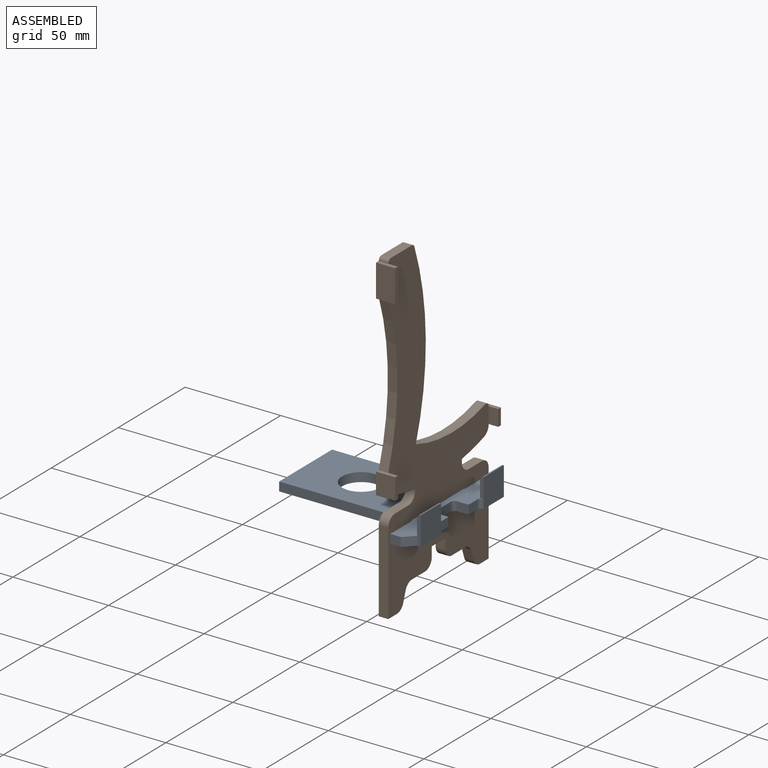
[diagram: assembled view]
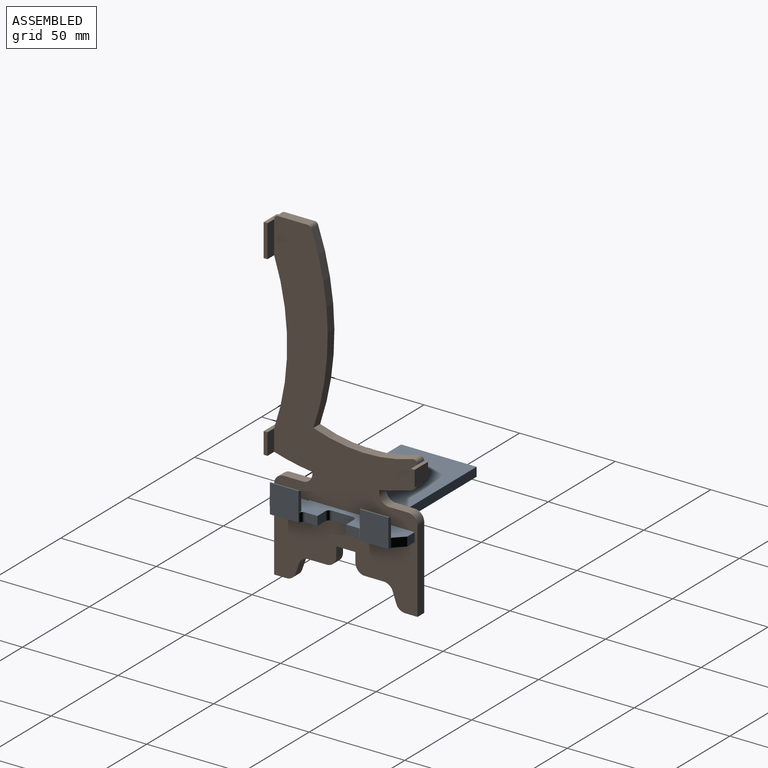
[diagram: assembled view, second angle]
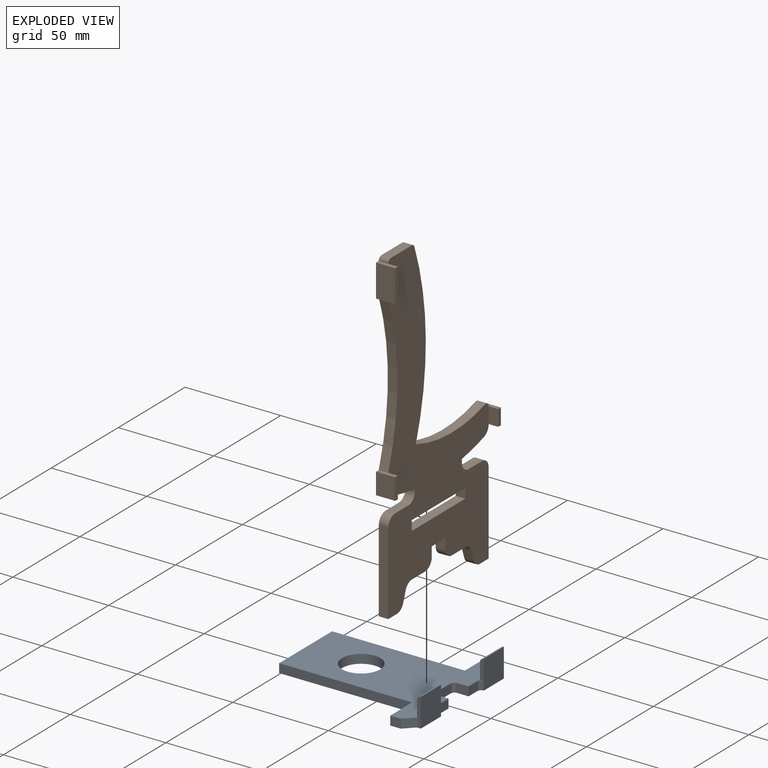
[diagram: exploded view]
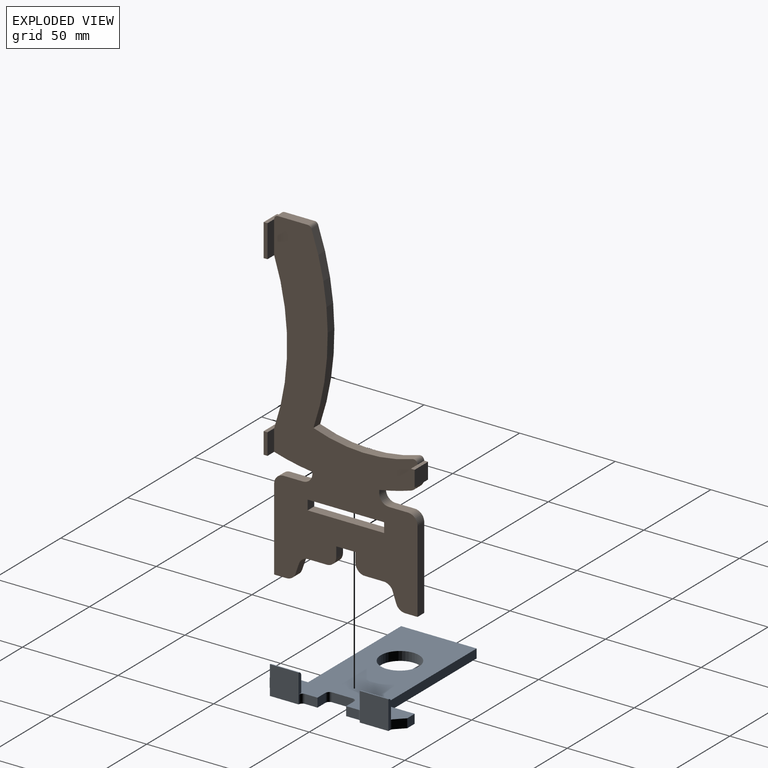
[diagram: exploded view, second angle]
ASSEMBLY  parts=2 mates=2
PART A: 33 faces, bbox 72x82x15 mm
  f0: plane 6.5x4.7mm, normal (0,-1,0), area 30.6mm2, adj f4,f5,f14,f25
  f1: plane 5.5x4.7mm, normal (1,0,0), area 25.8mm2, adj f4,f5,f8,f11
  f2: plane 5.5x4.7mm, normal (-1,0,0), area 25.8mm2, adj f4,f5,f9,f12
  f3: plane 39.5x4.7mm, normal (0,1,0), area 185.7mm2, adj f4,f5,f7,f10
  f4: plane 82x72mm, normal (0,0,-1), area 3105.7mm2, adj f0,f1,f2,f3,f6,f7,f8,f9
  f5: plane 82x72mm, normal (0,0,1), area 3045.7mm2, adj f0,f1,f2,f3,f6,f7,f8,f9
  f6: plane 6.5x4.7mm, normal (0,-1,0), area 30.5mm2, adj f4,f5,f13,f24
  f7: plane 69.5x4.7mm, normal (1,0,0), area 326.6mm2, adj f3,f4,f5,f8
  f8: plane 16.25x4.7mm, normal (0,1,0), area 76.4mm2, adj f1,f4,f5,f7
  f9: plane 16.25x4.7mm, normal (0,1,0), area 76.4mm2, adj f2,f4,f5,f10
  f10: plane 69.5x4.7mm, normal (-1,0,0), area 326.6mm2, adj f3,f4,f5,f9
  f11: plane 4.7x4.41mm, normal (0.71,-0.71,0), area 29.3mm2, adj f1,f4,f5,f30
  f12: plane 4.7x4.41mm, normal (-0.71,-0.71,0), area 29.3mm2, adj f2,f4,f5,f31
  f13: plane 6x4.7mm, normal (-1,0,0), area 28.2mm2, adj f4,f5,f6,f28
  f14: plane 6x4.7mm, normal (1,0,0), area 28.2mm2, adj f0,f4,f5,f29
  f15: plane 11x4.7mm, normal (0,-1,0), area 51.7mm2, adj f4,f5,f28,f29
  f16: plane 15x8.3mm, normal (0,1,0), area 124.5mm2, adj f5,f17,f19,f27
  f17: plane 15x2mm, normal (-1,0,0), area 25.2mm2, adj f4,f5,f16,f18,f27,f31
  f18: plane 15x15mm, normal (0,-1,0), area 225mm2, adj f4,f17,f19,f25,f27
  f19: plane 10.3x2mm, normal (1,0,0), area 19.7mm2, adj f5,f16,f18,f27
  f20: plane 15x8.3mm, normal (0,1,0), area 124.5mm2, adj f5,f21,f22,f26
  f21: plane 15x2mm, normal (1,0,0), area 25.2mm2, adj f4,f5,f20,f23,f26,f30
  f22: plane 10.3x2mm, normal (-1,0,0), area 19.7mm2, adj f5,f20,f23,f26
  f23: plane 15x15mm, normal (0,-1,0), area 225mm2, adj f4,f21,f22,f24,f26
  f24: cylinder r=2mm len=4.7mm, axis (0,0,-1), area 14.8mm2, adj f4,f5,f6,f23
  f25: cylinder r=2mm len=4.7mm, axis (0,0,1), area 14.8mm2, adj f0,f4,f5,f18
  f26: cylinder r=2mm len=15mm, axis (1,0,0), area 47.1mm2, adj f20,f21,f22,f23
  f27: cylinder r=2mm len=15mm, axis (1,0,0), area 47.1mm2, adj f16,f17,f18,f19
  f28: cylinder r=2mm len=4.7mm, axis (0,0,-1), area 14.8mm2, adj f4,f5,f13,f15
  f29: cylinder r=2mm len=4.7mm, axis (0,0,1), area 14.8mm2, adj f4,f5,f14,f15
  f30: cylinder r=2mm len=4.7mm, axis (0,0,1), area 7.4mm2, adj f4,f5,f11,f21
  f31: cylinder r=2mm len=4.7mm, axis (0,0,-1), area 7.4mm2, adj f4,f5,f12,f17
  f32: cylinder r=10mm len=20mm, axis (0,0,1), area 295.3mm2, adj f4,f5
PART B: 56 faces, bbox 10x79x170 mm
  f0: plane 6.44x5mm, normal (0,0,-1), area 32.2mm2, adj f2,f3,f6,f37
  f1: plane 15.63x5mm, normal (0,0,1), area 78.1mm2, adj f2,f3,f39,f40
  f2: plane 170x75mm, normal (1,0,0), area 6204.3mm2, adj f0,f1,f4,f5,f6,f7,f8,f9
  f3: plane 170x79mm, normal (-1,0,0), area 6277.5mm2, adj f0,f1,f4,f5,f6,f7,f8,f9
  f4: plane 6.44x5mm, normal (0,0,-1), area 32.2mm2, adj f2,f3,f5,f32
  f5: plane 43x5mm, normal (0,1,0), area 215mm2, adj f2,f3,f4,f21
  f6: plane 43x5mm, normal (0,-1,0), area 215mm2, adj f0,f2,f3,f24
  f7: plane 5.1x5mm, normal (0,1,0), area 25.5mm2, adj f2,f3,f8,f10
  f8: plane 40x5mm, normal (0,0,1), area 200mm2, adj f2,f3,f7,f9
  f9: plane 5.1x5mm, normal (0,-1,0), area 25.5mm2, adj f2,f3,f8,f10
  f10: plane 40x5mm, normal (0,0,-1), area 200mm2, adj f2,f3,f7,f9
  f11: cylinder r=126.3mm len=81.83mm, axis (1,0,0), area 416.7mm2, adj f2,f3,f42,f47
  f12: plane 5x1.74mm, normal (0,1,0), area 8.7mm2, adj f2,f3,f14,f22
  f13: plane 10x5mm, normal (0,0,1), area 50mm2, adj f2,f3,f21,f22
  f14: cylinder r=120.45mm len=16.54mm, axis (1,0,0), area 85.3mm2, adj f2,f3,f12,f20
  f15: plane 10x5mm, normal (0,0,1), area 50mm2, adj f2,f3,f23,f24
  f16: plane 5x0.84mm, normal (0,-1,0), area 4.2mm2, adj f2,f3,f17,f23
  f17: cylinder r=120.45mm len=20mm, axis (1,0,0), area 102.3mm2, adj f2,f3,f16,f43
  f18: cylinder r=142.32mm len=93.88mm, axis (1,0,0), area 478.4mm2, adj f2,f3,f19,f39
  f19: cylinder r=79.64mm len=51.83mm, axis (1,0,0), area 264mm2, adj f2,f3,f18,f38
  f20: cylinder r=5mm len=5mm, axis (1,0,0), area 31.4mm2, adj f2,f3,f14,f54
  f21: cylinder r=5mm len=5mm, axis (1,0,0), area 39.3mm2, adj f2,f3,f5,f13
  f22: cylinder r=5mm len=5mm, axis (-1,0,0), area 39.3mm2, adj f2,f3,f12,f13
  f23: cylinder r=5mm len=5mm, axis (1,0,0), area 39.3mm2, adj f2,f3,f15,f16
  f24: cylinder r=5mm len=5mm, axis (-1,0,0), area 39.3mm2, adj f2,f3,f6,f15
  f25: plane 5.27x5mm, normal (0,-0.95,-0.33), area 27.9mm2, adj f2,f3,f32,f33
  f26: plane 9.79x5mm, normal (0,0,-1), area 48.9mm2, adj f2,f3,f33,f34
  f27: plane 5x5mm, normal (0,-1,0), area 25mm2, adj f2,f3,f28,f34
  f28: plane 10x5mm, normal (0,0,-1), area 50mm2, adj f2,f3,f27,f29
  f29: plane 5x5mm, normal (0,1,0), area 25mm2, adj f2,f3,f28,f35
  f30: plane 9.79x5mm, normal (0,0,-1), area 48.9mm2, adj f2,f3,f35,f36
  f31: plane 5.27x5mm, normal (0,0.95,-0.33), area 27.9mm2, adj f2,f3,f36,f37
  f32: cylinder r=5mm len=5mm, axis (-1,0,0), area 30.9mm2, adj f2,f3,f4,f25
  f33: cylinder r=5mm len=5mm, axis (-1,0,0), area 30.9mm2, adj f2,f3,f25,f26
  f34: cylinder r=5mm len=5mm, axis (1,0,0), area 39.3mm2, adj f2,f3,f26,f27
  f35: cylinder r=5mm len=5mm, axis (1,0,0), area 39.3mm2, adj f2,f3,f29,f30
  f36: cylinder r=5mm len=5mm, axis (-1,0,0), area 30.9mm2, adj f2,f3,f30,f31
  f37: cylinder r=5mm len=5mm, axis (1,0,0), area 30.9mm2, adj f0,f2,f3,f31
  f38: cylinder r=2mm len=5mm, axis (1,0,0), area 18.8mm2, adj f2,f3,f19,f52
  f39: cylinder r=2mm len=5mm, axis (1,0,0), area 12.2mm2, adj f1,f2,f3,f18
  f40: cylinder r=2mm len=5mm, axis (1,0,0), area 15.7mm2, adj f1,f2,f3,f49
  f41: plane 11.15x5mm, normal (0,1,0), area 55.7mm2, adj f2,f42,f43,f45
  f42: plane 10x2mm, normal (0,0,1), area 20mm2, adj f3,f11,f41,f44,f45
  f43: plane 10x2mm, normal (0,0,-1), area 20mm2, adj f3,f17,f41,f44,f45
  f44: plane 11.15x10mm, normal (0,-1,0), area 111.5mm2, adj f3,f42,f43,f45
  f45: plane 11.15x2mm, normal (1,0,0), area 22.3mm2, adj f41,f42,f43,f44
  f46: plane 17.02x5mm, normal (0,1,0), area 85.1mm2, adj f2,f47,f49,f50
  f47: plane 10x2mm, normal (0,0,-1), area 20mm2, adj f3,f11,f46,f48,f50
  f48: plane 17.02x10mm, normal (0,-1,0), area 170.2mm2, adj f3,f47,f49,f50
  f49: plane 10x2mm, normal (0,0,1), area 20mm2, adj f3,f40,f46,f48,f50
  f50: plane 17.02x2mm, normal (1,0,0), area 34mm2, adj f46,f47,f48,f49
  f51: plane 8.42x5mm, normal (0,-1,0), area 42.1mm2, adj f2,f52,f54,f55
  f52: plane 10x2mm, normal (0,0,1), area 20mm2, adj f3,f38,f51,f53,f55
  f53: plane 10x8.42mm, normal (0,1,0), area 84.2mm2, adj f3,f52,f54,f55
  f54: plane 10x2mm, normal (0,0,-1), area 20mm2, adj f3,f20,f51,f53,f55
  f55: plane 8.42x2mm, normal (1,0,0), area 16.8mm2, adj f51,f52,f53,f54
PLACE A rot(axis=(0,0,1),90deg) t=(-16.9,0,35)mm
PLACE B t=(-32.4,0,0)mm
MATE planar A.f4 <-> B.f8  axis (0,0,-1) through (-16.9,10.75,35)mm
MATE planar A.f9 <-> B.f2  axis (-1,0,0) through (-27.4,-27.88,37.35)mm
